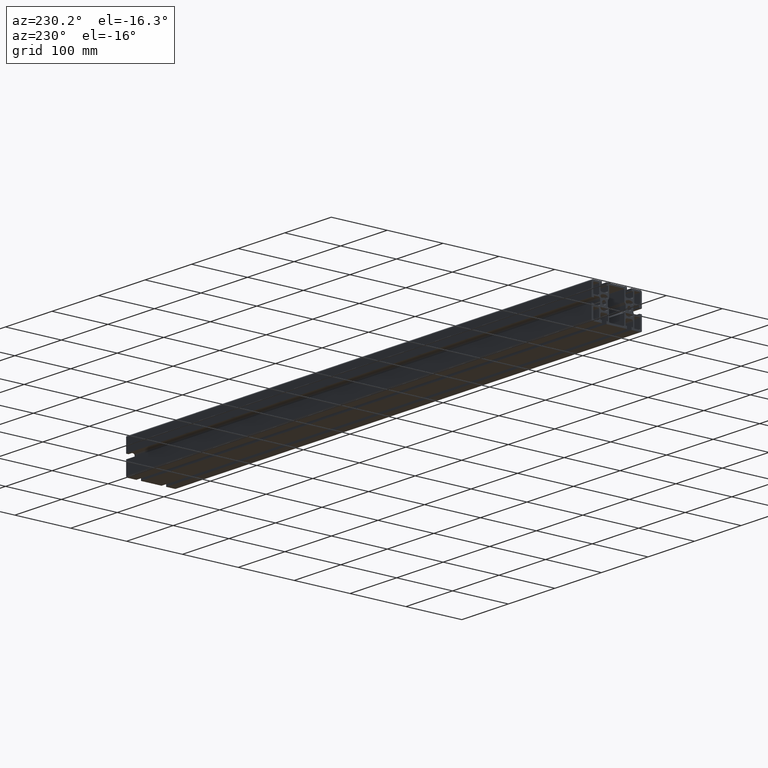
[diagram: clean part render]
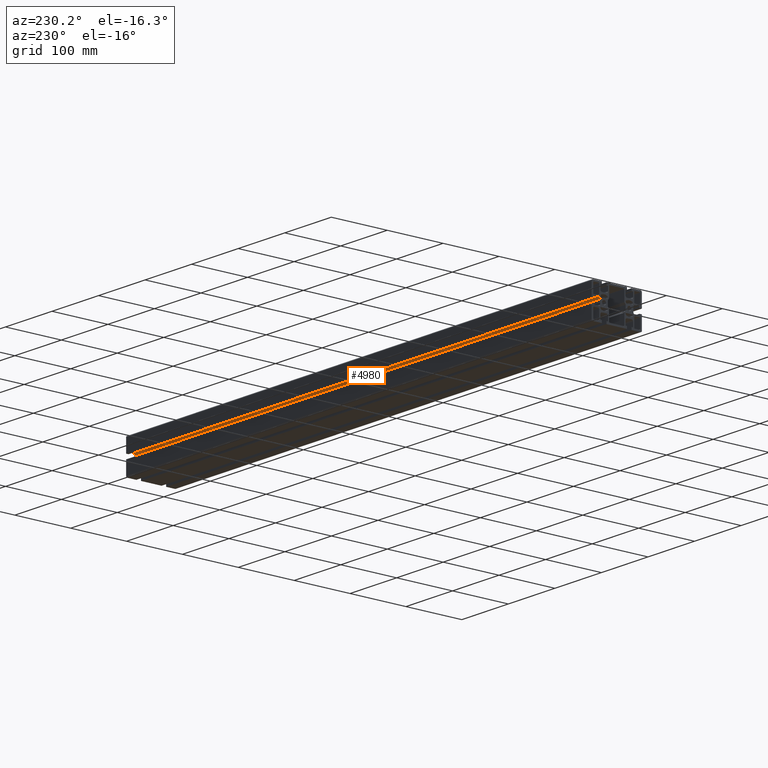
[diagram: same view with one face highlighted and labeled with its STEP entity id]
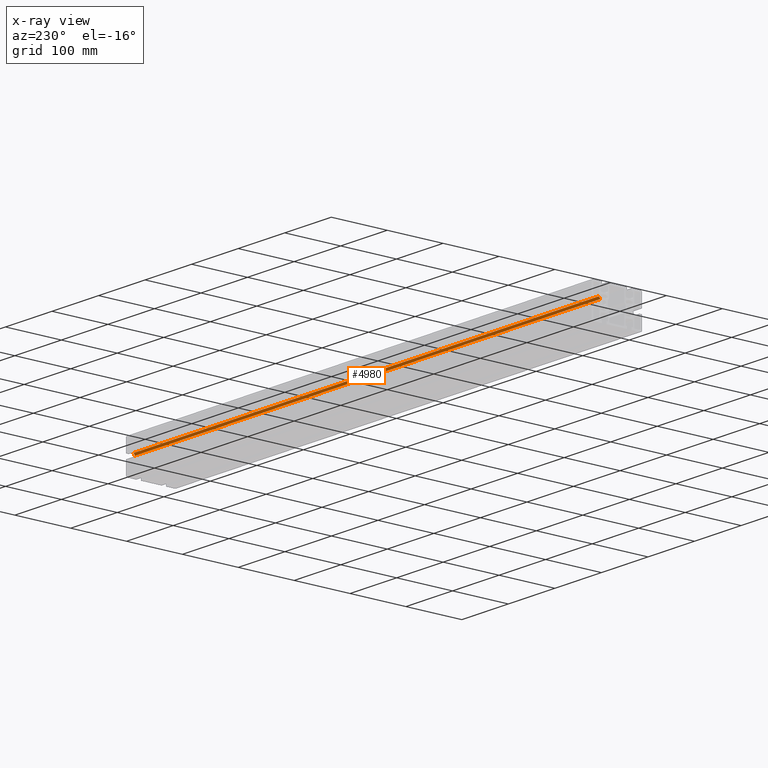
[diagram: x-ray of the same camera — body ghosted, the highlighted face saturated]
A machine part, auxiliary view. The second image highlights one B-rep face of the part: STEP entity #4980.
The next image is the same camera in x-ray: the body ghosted, the highlighted face saturated — about 0% of this face is hidden behind the body in this view.
In plain terms, the highlighted cylindrical surface (edge-blend (fillet) strip) has radius 3.2 mm, axis along (1, 0, 0).
Its self-contained STEP definition (entity closure, byte-faithful):
#151=CIRCLE('',#5362,3.20000000000004);
#152=CIRCLE('',#5363,3.20000000000004);
#230=CYLINDRICAL_SURFACE('',#5361,3.20000000000004);
#452=FACE_OUTER_BOUND('',#696,.T.);
#696=EDGE_LOOP('',(#3985,#3986,#3987,#3988));
#1270=LINE('',#8037,#1860);
#1271=LINE('',#8043,#1861);
#1860=VECTOR('',#6587,10.);
#1861=VECTOR('',#6594,10.);
#2353=VERTEX_POINT('',#8033);
#2354=VERTEX_POINT('',#8035);
#2355=VERTEX_POINT('',#8039);
#2356=VERTEX_POINT('',#8041);
#3048=EDGE_CURVE('',#2353,#2354,#1270,.T.);
#3049=EDGE_CURVE('',#2353,#2355,#151,.T.);
#3050=EDGE_CURVE('',#2356,#2354,#152,.T.);
#3051=EDGE_CURVE('',#2355,#2356,#1271,.T.);
#3985=ORIENTED_EDGE('',*,*,#3049,.F.);
#3986=ORIENTED_EDGE('',*,*,#3048,.T.);
#3987=ORIENTED_EDGE('',*,*,#3050,.F.);
#3988=ORIENTED_EDGE('',*,*,#3051,.F.);
#4980=ADVANCED_FACE('',(#452),#230,.F.);
#5361=AXIS2_PLACEMENT_3D('',#8038,#6588,#6589);
#5362=AXIS2_PLACEMENT_3D('',#8040,#6590,#6591);
#5363=AXIS2_PLACEMENT_3D('',#8042,#6592,#6593);
#6587=DIRECTION('',(1.,0.,0.));
#6588=DIRECTION('center_axis',(1.,0.,0.));
#6589=DIRECTION('ref_axis',(0.,-5.99520433297577E-13,1.));
#6590=DIRECTION('center_axis',(1.,0.,0.));
#6591=DIRECTION('ref_axis',(0.,-5.99520433297577E-13,1.));
#6592=DIRECTION('center_axis',(-1.,0.,0.));
#6593=DIRECTION('ref_axis',(0.,-5.99520433297577E-13,1.));
#6594=DIRECTION('',(1.,0.,0.));
#8033=CARTESIAN_POINT('',(0.,55.3999999999995,6.90337550000173));
#8035=CARTESIAN_POINT('',(1000.,55.3999999999995,6.90337550000173));
#8037=CARTESIAN_POINT('',(0.,55.3999999999995,6.90337550000173));
#8038=CARTESIAN_POINT('Origin',(0.,55.4000000000014,3.7033755000017));
#8039=CARTESIAN_POINT('',(0.,52.2000000000014,3.70337550000261));
#8040=CARTESIAN_POINT('Origin',(0.,55.4000000000014,3.7033755000017));
#8041=CARTESIAN_POINT('',(1000.,52.2000000000014,3.70337550000261));
#8042=CARTESIAN_POINT('Origin',(1000.,55.4000000000014,3.7033755000017));
#8043=CARTESIAN_POINT('',(0.,52.2000000000014,3.70337550000261));